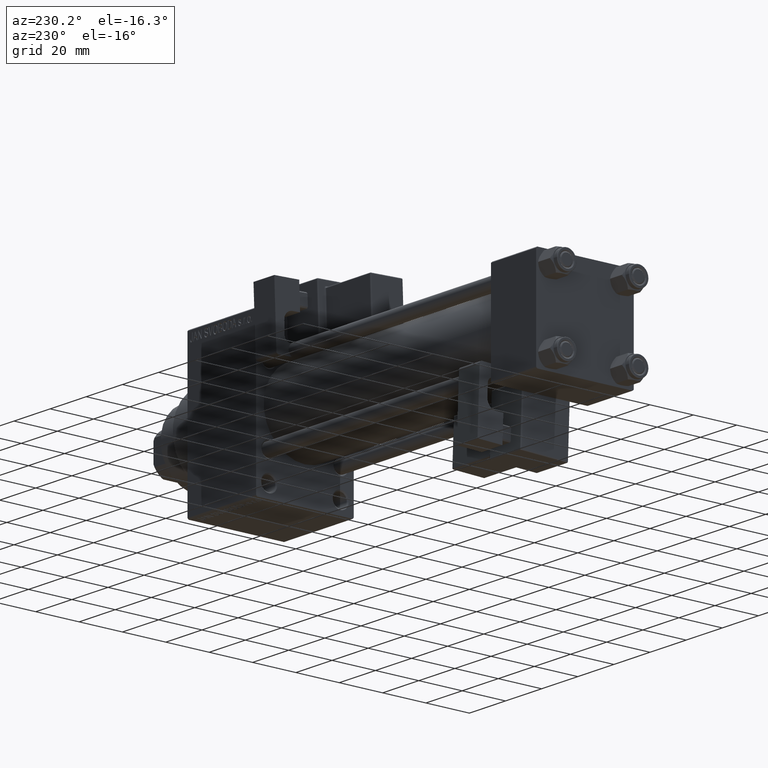
[diagram: clean part render]
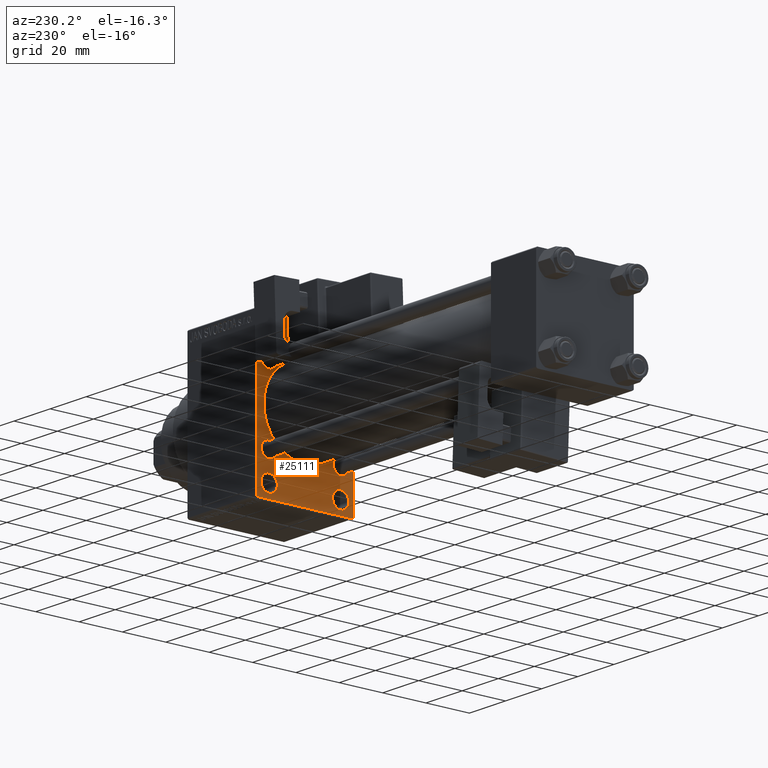
[diagram: same view with one face highlighted and labeled with its STEP entity id]
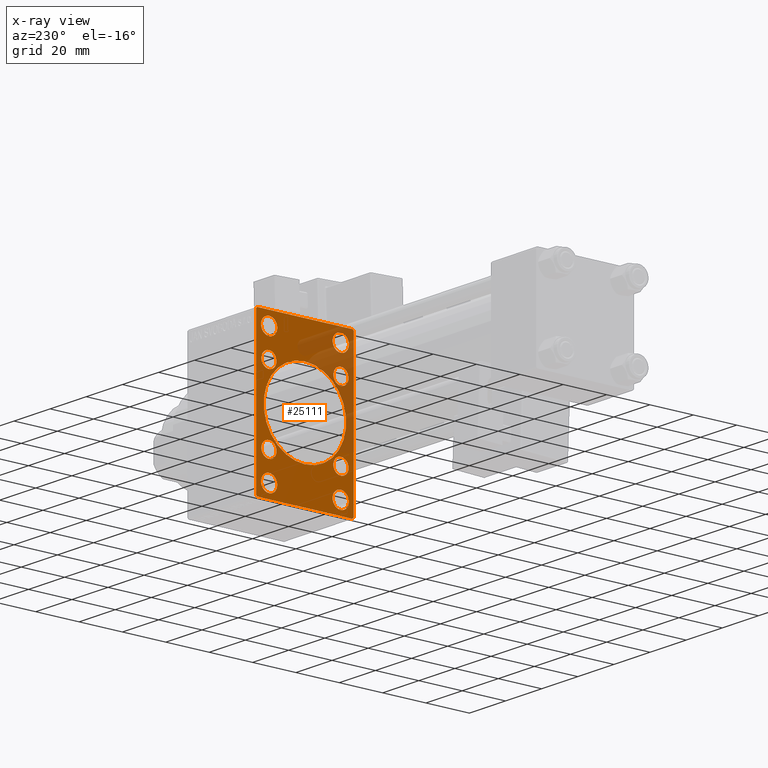
[diagram: x-ray of the same camera — body ghosted, the highlighted face saturated]
A machine part, auxiliary view. The second image highlights one B-rep face of the part: STEP entity #25111.
The next image is the same camera in x-ray: the body ghosted, the highlighted face saturated — about 25% of this face is hidden behind the body in this view.
In plain terms, the highlighted planar face has unit normal (-1, 0, 0).
Its self-contained STEP definition (entity closure, byte-faithful):
#445 = VECTOR ( 'NONE', #39798, 1000.000000000000114 ) ;
#548 = ORIENTED_EDGE ( 'NONE', *, *, #36403, .T. ) ;
#910 = AXIS2_PLACEMENT_3D ( 'NONE', #38873, #23373, #38625 ) ;
#1224 = VERTEX_POINT ( 'NONE', #12276 ) ;
#2043 = CARTESIAN_POINT ( 'NONE',  ( 155.0000000000000000, 22.49999999999999645, 35.00000000000000000 ) ) ;
#2148 = DIRECTION ( 'NONE',  ( 0.000000000000000000, 0.000000000000000000, 1.000000000000000000 ) ) ;
#2580 = CARTESIAN_POINT ( 'NONE',  ( 155.0000000000000000, 22.49999999999999645, -34.50000000000000000 ) ) ;
#2790 = ORIENTED_EDGE ( 'NONE', *, *, #21309, .T. ) ;
#2875 = CARTESIAN_POINT ( 'NONE',  ( 155.0000000000000000, 16.50000000000000000, 25.25000000000008882 ) ) ;
#3034 = EDGE_CURVE ( 'NONE', #27205, #37232, #13040, .T. ) ;
#3080 = DIRECTION ( 'NONE',  ( 0.000000000000000000, 0.000000000000000000, 1.000000000000000000 ) ) ;
#3675 = EDGE_CURVE ( 'NONE', #31376, #22239, #36260, .T. ) ;
#3680 = CARTESIAN_POINT ( 'NONE',  ( 155.0000000000000000, -16.50000000000000000, -25.25000000000007105 ) ) ;
#3716 = AXIS2_PLACEMENT_3D ( 'NONE', #48288, #45297, #30284 ) ;
#4088 = CIRCLE ( 'NONE', #43981, 19.00000000000000000 ) ;
#4448 = CARTESIAN_POINT ( 'NONE',  ( 155.0000000000000000, -16.50000000000000000, -32.74999999999991473 ) ) ;
#4477 = VECTOR ( 'NONE', #13500, 1000.000000000000114 ) ;
#4699 = ORIENTED_EDGE ( 'NONE', *, *, #33102, .T. ) ;
#5018 = CIRCLE ( 'NONE', #20162, 3.749999999999923617 ) ;
#5163 = FACE_BOUND ( 'NONE', #9074, .T. ) ;
#5191 = AXIS2_PLACEMENT_3D ( 'NONE', #39839, #25302, #9593 ) ;
#5259 = VECTOR ( 'NONE', #17628, 1000.000000000000000 ) ;
#5283 = ORIENTED_EDGE ( 'NONE', *, *, #47340, .T. ) ;
#5382 = CARTESIAN_POINT ( 'NONE',  ( 155.0000000000000000, -22.50000000000000355, 34.50000000000000000 ) ) ;
#5645 = FACE_OUTER_BOUND ( 'NONE', #34536, .T. ) ;
#6090 = DIRECTION ( 'NONE',  ( 0.000000000000000000, 0.000000000000000000, 1.000000000000000000 ) ) ;
#6370 = CIRCLE ( 'NONE', #32706, 3.749999999999920064 ) ;
#6580 = CIRCLE ( 'NONE', #36901, 3.500000000000006661 ) ;
#6592 = DIRECTION ( 'NONE',  ( 0.000000000000000000, 0.000000000000000000, 1.000000000000000000 ) ) ;
#6862 = AXIS2_PLACEMENT_3D ( 'NONE', #36382, #36140, #17150 ) ;
#7478 = VERTEX_POINT ( 'NONE', #5382 ) ;
#7543 = VERTEX_POINT ( 'NONE', #48578 ) ;
#7576 = CARTESIAN_POINT ( 'NONE',  ( 155.0000000000000000, 16.50000000000000000, 29.00000000000000355 ) ) ;
#8163 = CARTESIAN_POINT ( 'NONE',  ( 155.0000000000000000, -16.59999999999999076, 16.60000000000000853 ) ) ;
#8313 = ORIENTED_EDGE ( 'NONE', *, *, #19237, .T. ) ;
#8346 = DIRECTION ( 'NONE',  ( 1.000000000000000000, 0.000000000000000000, 0.000000000000000000 ) ) ;
#8737 = DIRECTION ( 'NONE',  ( 0.000000000000000000, 0.000000000000000000, 1.000000000000000000 ) ) ;
#8761 = CARTESIAN_POINT ( 'NONE',  ( 155.0000000000000000, -28.49999999999999645, 28.49999999999999645 ) ) ;
#8897 = CARTESIAN_POINT ( 'NONE',  ( 155.0000000000000000, -16.59999999999999076, -20.10000000000001208 ) ) ;
#9074 = EDGE_LOOP ( 'NONE', ( #8313, #29240 ) ) ;
#9284 = ORIENTED_EDGE ( 'NONE', *, *, #33986, .T. ) ;
#9407 = FACE_BOUND ( 'NONE', #16083, .T. ) ;
#9593 = DIRECTION ( 'NONE',  ( 0.000000000000000000, 0.000000000000000000, 1.000000000000000000 ) ) ;
#9595 = VERTEX_POINT ( 'NONE', #24849 ) ;
#9898 = LINE ( 'NONE', #37618, #5259 ) ;
#9971 = CIRCLE ( 'NONE', #5191, 3.500000000000006661 ) ;
#10119 = ORIENTED_EDGE ( 'NONE', *, *, #11229, .T. ) ;
#10125 = DIRECTION ( 'NONE',  ( 0.000000000000000000, -0.7071067811865474617, 0.7071067811865474617 ) ) ;
#10395 = CIRCLE ( 'NONE', #27948, 3.500000000000006661 ) ;
#10513 = DIRECTION ( 'NONE',  ( 1.000000000000000000, 0.000000000000000000, 0.000000000000000000 ) ) ;
#10995 = DIRECTION ( 'NONE',  ( 0.000000000000000000, 0.000000000000000000, 1.000000000000000000 ) ) ;
#11229 = EDGE_CURVE ( 'NONE', #7543, #28638, #47215, .T. ) ;
#11250 = AXIS2_PLACEMENT_3D ( 'NONE', #38732, #35224, #8737 ) ;
#11363 = DIRECTION ( 'NONE',  ( 0.000000000000000000, 0.000000000000000000, 1.000000000000000000 ) ) ;
#11394 = CARTESIAN_POINT ( 'NONE',  ( 155.0000000000000000, 16.59999999999999787, 20.10000000000001208 ) ) ;
#11403 = CIRCLE ( 'NONE', #40131, 3.500000000000006661 ) ;
#11796 = AXIS2_PLACEMENT_3D ( 'NONE', #25870, #48856, #2148 ) ;
#11815 = CARTESIAN_POINT ( 'NONE',  ( 155.0000000000000000, -16.50000000000000000, 25.25000000000009237 ) ) ;
#11839 = CARTESIAN_POINT ( 'NONE',  ( 155.0000000000000000, 16.59999999999999787, -13.09999999999999787 ) ) ;
#11917 = DIRECTION ( 'NONE',  ( 1.000000000000000000, 0.000000000000000000, 0.000000000000000000 ) ) ;
#11993 = ORIENTED_EDGE ( 'NONE', *, *, #35750, .T. ) ;
#12276 = CARTESIAN_POINT ( 'NONE',  ( 155.0000000000000000, 16.50000000000000000, 32.74999999999991473 ) ) ;
#12582 = ORIENTED_EDGE ( 'NONE', *, *, #14310, .T. ) ;
#13040 = CIRCLE ( 'NONE', #32194, 3.749999999999923617 ) ;
#13422 = VERTEX_POINT ( 'NONE', #44627 ) ;
#13500 = DIRECTION ( 'NONE',  ( -0.000000000000000000, 0.7071067811865474617, 0.7071067811865474617 ) ) ;
#13655 = CIRCLE ( 'NONE', #11250, 3.749999999999923617 ) ;
#13869 = ORIENTED_EDGE ( 'NONE', *, *, #3034, .T. ) ;
#14310 = EDGE_CURVE ( 'NONE', #43774, #47914, #5018, .T. ) ;
#14380 = DIRECTION ( 'NONE',  ( 0.000000000000000000, 0.000000000000000000, 1.000000000000000000 ) ) ;
#14515 = CARTESIAN_POINT ( 'NONE',  ( 155.0000000000000000, 16.50000000000000000, -28.99999999999999289 ) ) ;
#14637 = CARTESIAN_POINT ( 'NONE',  ( 155.0000000000000000, -2.602085213965210642E-15, 0.000000000000000000 ) ) ;
#14667 = EDGE_CURVE ( 'NONE', #21251, #40844, #11403, .T. ) ;
#14902 = VERTEX_POINT ( 'NONE', #31551 ) ;
#15145 = AXIS2_PLACEMENT_3D ( 'NONE', #23335, #8346, #46579 ) ;
#16083 = EDGE_LOOP ( 'NONE', ( #12582, #25282 ) ) ;
#16125 = CARTESIAN_POINT ( 'NONE',  ( 155.0000000000000000, 22.49999999999999645, 35.00000000000000000 ) ) ;
#16679 = VERTEX_POINT ( 'NONE', #26884 ) ;
#16869 = EDGE_LOOP ( 'NONE', ( #43017, #548 ) ) ;
#16997 = VERTEX_POINT ( 'NONE', #11839 ) ;
#17028 = ORIENTED_EDGE ( 'NONE', *, *, #14667, .T. ) ;
#17150 = DIRECTION ( 'NONE',  ( -0.000000000000000000, 0.000000000000000000, 1.000000000000000000 ) ) ;
#17402 = CIRCLE ( 'NONE', #11796, 3.749999999999923617 ) ;
#17628 = DIRECTION ( 'NONE',  ( 0.000000000000000000, -1.000000000000000000, 0.000000000000000000 ) ) ;
#17681 = CARTESIAN_POINT ( 'NONE',  ( 155.0000000000000000, 16.50000000000000000, -32.74999999999991473 ) ) ;
#18064 = EDGE_CURVE ( 'NONE', #7478, #13422, #22164, .T. ) ;
#18289 = ORIENTED_EDGE ( 'NONE', *, *, #18064, .F. ) ;
#19237 = EDGE_CURVE ( 'NONE', #19721, #39919, #42732, .T. ) ;
#19242 = CARTESIAN_POINT ( 'NONE',  ( 155.0000000000000000, -21.99999999999998934, -35.00000000000000000 ) ) ;
#19547 = EDGE_CURVE ( 'NONE', #16997, #16679, #9971, .T. ) ;
#19721 = VERTEX_POINT ( 'NONE', #31213 ) ;
#20162 = AXIS2_PLACEMENT_3D ( 'NONE', #14515, #10513, #45261 ) ;
#20888 = PLANE ( 'NONE',  #6862 ) ;
#20900 = CARTESIAN_POINT ( 'NONE',  ( 155.0000000000000000, -16.50000000000000000, 29.00000000000000711 ) ) ;
#21134 = FACE_BOUND ( 'NONE', #23643, .T. ) ;
#21150 = DIRECTION ( 'NONE',  ( 0.000000000000000000, 0.000000000000000000, 1.000000000000000000 ) ) ;
#21251 = VERTEX_POINT ( 'NONE', #35542 ) ;
#21278 = DIRECTION ( 'NONE',  ( 0.000000000000000000, -1.000000000000000000, 0.000000000000000000 ) ) ;
#21309 = EDGE_CURVE ( 'NONE', #9595, #37935, #24043, .T. ) ;
#22146 = AXIS2_PLACEMENT_3D ( 'NONE', #25494, #37499, #10995 ) ;
#22164 = LINE ( 'NONE', #34153, #22674 ) ;
#22239 = VERTEX_POINT ( 'NONE', #41090 ) ;
#22312 = DIRECTION ( 'NONE',  ( 1.000000000000000000, 0.000000000000000000, 0.000000000000000000 ) ) ;
#22674 = VECTOR ( 'NONE', #33414, 1000.000000000000000 ) ;
#23086 = CIRCLE ( 'NONE', #42248, 3.500000000000006661 ) ;
#23335 = CARTESIAN_POINT ( 'NONE',  ( 155.0000000000000000, 16.50000000000000000, 29.00000000000000355 ) ) ;
#23373 = DIRECTION ( 'NONE',  ( 1.000000000000000000, 0.000000000000000000, 0.000000000000000000 ) ) ;
#23643 = EDGE_LOOP ( 'NONE', ( #45954, #4699 ) ) ;
#23797 = CARTESIAN_POINT ( 'NONE',  ( 155.0000000000000000, 28.49999999999999645, 28.49999999999999645 ) ) ;
#24043 = LINE ( 'NONE', #23797, #445 ) ;
#24365 = VERTEX_POINT ( 'NONE', #2875 ) ;
#24414 = CARTESIAN_POINT ( 'NONE',  ( 155.0000000000000000, -16.59999999999999076, -16.60000000000000853 ) ) ;
#24635 = FACE_BOUND ( 'NONE', #40760, .T. ) ;
#24849 = CARTESIAN_POINT ( 'NONE',  ( 155.0000000000000000, 21.99999999999999645, 35.00000000000000000 ) ) ;
#24877 = FACE_BOUND ( 'NONE', #40563, .T. ) ;
#24904 = DIRECTION ( 'NONE',  ( 1.000000000000000000, 0.000000000000000000, 0.000000000000000000 ) ) ;
#24982 = VERTEX_POINT ( 'NONE', #42663 ) ;
#25111 = ADVANCED_FACE ( 'NONE', ( #28388, #24877, #9407, #24635, #5163, #39898, #42911, #21134, #31646, #5645 ), #20888, .T. ) ;
#25156 = AXIS2_PLACEMENT_3D ( 'NONE', #8163, #38904, #35147 ) ;
#25247 = EDGE_CURVE ( 'NONE', #22239, #32565, #9898, .T. ) ;
#25282 = ORIENTED_EDGE ( 'NONE', *, *, #45976, .T. ) ;
#25302 = DIRECTION ( 'NONE',  ( 1.000000000000000000, 0.000000000000000000, 0.000000000000000000 ) ) ;
#25455 = EDGE_CURVE ( 'NONE', #7478, #14902, #43257, .T. ) ;
#25494 = CARTESIAN_POINT ( 'NONE',  ( 155.0000000000000000, 16.59999999999999787, -16.60000000000000497 ) ) ;
#25851 = CARTESIAN_POINT ( 'NONE',  ( 155.0000000000000000, -28.49999999999999645, -28.49999999999999645 ) ) ;
#25870 = CARTESIAN_POINT ( 'NONE',  ( 155.0000000000000000, -16.50000000000000000, -28.99999999999999289 ) ) ;
#26305 = DIRECTION ( 'NONE',  ( 1.000000000000000000, 0.000000000000000000, 0.000000000000000000 ) ) ;
#26435 = VECTOR ( 'NONE', #10125, 1000.000000000000114 ) ;
#26518 = VERTEX_POINT ( 'NONE', #8897 ) ;
#26862 = CARTESIAN_POINT ( 'NONE',  ( 155.0000000000000000, -16.59999999999999076, 13.10000000000000142 ) ) ;
#26884 = CARTESIAN_POINT ( 'NONE',  ( 155.0000000000000000, 16.59999999999999787, -20.10000000000000853 ) ) ;
#26886 = EDGE_CURVE ( 'NONE', #24982, #37780, #33248, .T. ) ;
#27086 = CARTESIAN_POINT ( 'NONE',  ( 155.0000000000000000, 16.59999999999999787, 16.60000000000000497 ) ) ;
#27205 = VERTEX_POINT ( 'NONE', #3680 ) ;
#27224 = EDGE_CURVE ( 'NONE', #39919, #19721, #30071, .T. ) ;
#27655 = AXIS2_PLACEMENT_3D ( 'NONE', #34904, #11917, #42162 ) ;
#27742 = CIRCLE ( 'NONE', #22146, 3.500000000000006661 ) ;
#27948 = AXIS2_PLACEMENT_3D ( 'NONE', #27086, #45602, #11363 ) ;
#28388 = FACE_BOUND ( 'NONE', #16869, .T. ) ;
#28528 = CARTESIAN_POINT ( 'NONE',  ( 155.0000000000000000, 22.49999999999999645, 34.50000000000000000 ) ) ;
#28638 = VERTEX_POINT ( 'NONE', #34428 ) ;
#28875 = CARTESIAN_POINT ( 'NONE',  ( 155.0000000000000000, -16.50000000000000000, -28.99999999999999289 ) ) ;
#29029 = EDGE_CURVE ( 'NONE', #37935, #31376, #43616, .T. ) ;
#29240 = ORIENTED_EDGE ( 'NONE', *, *, #27224, .T. ) ;
#29610 = DIRECTION ( 'NONE',  ( 1.000000000000000000, 0.000000000000000000, 0.000000000000000000 ) ) ;
#30071 = CIRCLE ( 'NONE', #27655, 3.500000000000003109 ) ;
#30284 = DIRECTION ( 'NONE',  ( 0.000000000000000000, 0.000000000000000000, 1.000000000000000000 ) ) ;
#30807 = ORIENTED_EDGE ( 'NONE', *, *, #3675, .T. ) ;
#31213 = CARTESIAN_POINT ( 'NONE',  ( 155.0000000000000000, -16.59999999999999076, 20.10000000000001208 ) ) ;
#31376 = VERTEX_POINT ( 'NONE', #2580 ) ;
#31551 = CARTESIAN_POINT ( 'NONE',  ( 155.0000000000000000, -21.99999999999998934, 35.00000000000000000 ) ) ;
#31646 = FACE_BOUND ( 'NONE', #45821, .T. ) ;
#31921 = DIRECTION ( 'NONE',  ( 0.000000000000000000, 0.000000000000000000, 1.000000000000000000 ) ) ;
#32194 = AXIS2_PLACEMENT_3D ( 'NONE', #28875, #29610, #14380 ) ;
#32266 = DIRECTION ( 'NONE',  ( -0.000000000000000000, -0.7071067811865474617, -0.7071067811865474617 ) ) ;
#32353 = DIRECTION ( 'NONE',  ( 0.000000000000000000, 0.000000000000000000, -1.000000000000000000 ) ) ;
#32565 = VERTEX_POINT ( 'NONE', #19242 ) ;
#32706 = AXIS2_PLACEMENT_3D ( 'NONE', #7576, #26305, #3080 ) ;
#33102 = EDGE_CURVE ( 'NONE', #26518, #40154, #23086, .T. ) ;
#33243 = ORIENTED_EDGE ( 'NONE', *, *, #29029, .T. ) ;
#33248 = CIRCLE ( 'NONE', #3716, 3.749999999999916511 ) ;
#33250 = ORIENTED_EDGE ( 'NONE', *, *, #43265, .T. ) ;
#33414 = DIRECTION ( 'NONE',  ( 0.000000000000000000, 0.000000000000000000, -1.000000000000000000 ) ) ;
#33521 = ORIENTED_EDGE ( 'NONE', *, *, #38997, .T. ) ;
#33986 = EDGE_CURVE ( 'NONE', #24365, #1224, #34290, .T. ) ;
#34153 = CARTESIAN_POINT ( 'NONE',  ( 155.0000000000000000, -22.50000000000000355, 35.00000000000000000 ) ) ;
#34290 = CIRCLE ( 'NONE', #15145, 3.749999999999920064 ) ;
#34428 = CARTESIAN_POINT ( 'NONE',  ( 155.0000000000000000, -2.752562955852396712E-16, -19.00000000000000000 ) ) ;
#34536 = EDGE_LOOP ( 'NONE', ( #48591, #5283, #18289, #49046, #42017, #2790, #33243, #30807 ) ) ;
#34904 = CARTESIAN_POINT ( 'NONE',  ( 155.0000000000000000, -16.59999999999999076, 16.60000000000000853 ) ) ;
#35147 = DIRECTION ( 'NONE',  ( 0.000000000000000000, 0.000000000000000000, 1.000000000000000000 ) ) ;
#35224 = DIRECTION ( 'NONE',  ( 1.000000000000000000, 0.000000000000000000, 0.000000000000000000 ) ) ;
#35542 = CARTESIAN_POINT ( 'NONE',  ( 155.0000000000000000, 16.59999999999999787, 13.09999999999999609 ) ) ;
#35750 = EDGE_CURVE ( 'NONE', #16679, #16997, #27742, .T. ) ;
#35968 = CARTESIAN_POINT ( 'NONE',  ( 155.0000000000000000, 16.50000000000000000, -25.25000000000007105 ) ) ;
#36140 = DIRECTION ( 'NONE',  ( -1.000000000000000000, 0.000000000000000000, -0.000000000000000000 ) ) ;
#36260 = LINE ( 'NONE', #40504, #42622 ) ;
#36382 = CARTESIAN_POINT ( 'NONE',  ( 155.0000000000000000, 0.000000000000000000, 0.000000000000000000 ) ) ;
#36403 = EDGE_CURVE ( 'NONE', #37780, #24982, #41346, .T. ) ;
#36523 = LINE ( 'NONE', #2043, #44626 ) ;
#36901 = AXIS2_PLACEMENT_3D ( 'NONE', #48551, #22312, #6090 ) ;
#37232 = VERTEX_POINT ( 'NONE', #4448 ) ;
#37384 = DIRECTION ( 'NONE',  ( 1.000000000000000000, 0.000000000000000000, 0.000000000000000000 ) ) ;
#37499 = DIRECTION ( 'NONE',  ( 1.000000000000000000, 0.000000000000000000, 0.000000000000000000 ) ) ;
#37618 = CARTESIAN_POINT ( 'NONE',  ( 155.0000000000000000, 22.49999999999999645, -35.00000000000000000 ) ) ;
#37780 = VERTEX_POINT ( 'NONE', #11815 ) ;
#37935 = VERTEX_POINT ( 'NONE', #28528 ) ;
#37995 = EDGE_CURVE ( 'NONE', #9595, #14902, #36523, .T. ) ;
#38625 = DIRECTION ( 'NONE',  ( 0.000000000000000000, 0.000000000000000000, -1.000000000000000000 ) ) ;
#38732 = CARTESIAN_POINT ( 'NONE',  ( 155.0000000000000000, 16.50000000000000000, -28.99999999999999289 ) ) ;
#38873 = CARTESIAN_POINT ( 'NONE',  ( 155.0000000000000000, -2.602085213965210642E-15, 0.000000000000000000 ) ) ;
#38904 = DIRECTION ( 'NONE',  ( 1.000000000000000000, 0.000000000000000000, 0.000000000000000000 ) ) ;
#38997 = EDGE_CURVE ( 'NONE', #37232, #27205, #17402, .T. ) ;
#39569 = ORIENTED_EDGE ( 'NONE', *, *, #19547, .T. ) ;
#39679 = DIRECTION ( 'NONE',  ( 1.000000000000000000, 0.000000000000000000, 0.000000000000000000 ) ) ;
#39798 = DIRECTION ( 'NONE',  ( 0.000000000000000000, 0.7071067811865474617, -0.7071067811865474617 ) ) ;
#39839 = CARTESIAN_POINT ( 'NONE',  ( 155.0000000000000000, 16.59999999999999787, -16.60000000000000497 ) ) ;
#39898 = FACE_BOUND ( 'NONE', #42281, .T. ) ;
#39919 = VERTEX_POINT ( 'NONE', #26862 ) ;
#40131 = AXIS2_PLACEMENT_3D ( 'NONE', #40172, #24904, #31921 ) ;
#40154 = VERTEX_POINT ( 'NONE', #47591 ) ;
#40172 = CARTESIAN_POINT ( 'NONE',  ( 155.0000000000000000, 16.59999999999999787, 16.60000000000000497 ) ) ;
#40504 = CARTESIAN_POINT ( 'NONE',  ( 155.0000000000000000, 28.49999999999999645, -28.49999999999999645 ) ) ;
#40556 = AXIS2_PLACEMENT_3D ( 'NONE', #20900, #40644, #21150 ) ;
#40563 = EDGE_LOOP ( 'NONE', ( #13869, #33521 ) ) ;
#40644 = DIRECTION ( 'NONE',  ( 1.000000000000000000, 0.000000000000000000, 0.000000000000000000 ) ) ;
#40760 = EDGE_LOOP ( 'NONE', ( #33250, #9284 ) ) ;
#40844 = VERTEX_POINT ( 'NONE', #11394 ) ;
#41090 = CARTESIAN_POINT ( 'NONE',  ( 155.0000000000000000, 21.99999999999999645, -35.00000000000000000 ) ) ;
#41140 = DIRECTION ( 'NONE',  ( 0.000000000000000000, 0.000000000000000000, -1.000000000000000000 ) ) ;
#41346 = CIRCLE ( 'NONE', #40556, 3.749999999999916511 ) ;
#42017 = ORIENTED_EDGE ( 'NONE', *, *, #37995, .F. ) ;
#42162 = DIRECTION ( 'NONE',  ( 0.000000000000000000, 0.000000000000000000, 1.000000000000000000 ) ) ;
#42248 = AXIS2_PLACEMENT_3D ( 'NONE', #24414, #39679, #6592 ) ;
#42281 = EDGE_LOOP ( 'NONE', ( #44281, #17028 ) ) ;
#42622 = VECTOR ( 'NONE', #32266, 1000.000000000000114 ) ;
#42663 = CARTESIAN_POINT ( 'NONE',  ( 155.0000000000000000, -16.50000000000000000, 32.74999999999992184 ) ) ;
#42732 = CIRCLE ( 'NONE', #25156, 3.500000000000003109 ) ;
#42911 = FACE_BOUND ( 'NONE', #44196, .T. ) ;
#43017 = ORIENTED_EDGE ( 'NONE', *, *, #26886, .T. ) ;
#43257 = LINE ( 'NONE', #8761, #4477 ) ;
#43265 = EDGE_CURVE ( 'NONE', #1224, #24365, #6370, .T. ) ;
#43616 = LINE ( 'NONE', #16125, #44498 ) ;
#43774 = VERTEX_POINT ( 'NONE', #35968 ) ;
#43981 = AXIS2_PLACEMENT_3D ( 'NONE', #14637, #37384, #41140 ) ;
#44196 = EDGE_LOOP ( 'NONE', ( #39569, #11993 ) ) ;
#44281 = ORIENTED_EDGE ( 'NONE', *, *, #44444, .T. ) ;
#44444 = EDGE_CURVE ( 'NONE', #40844, #21251, #10395, .T. ) ;
#44498 = VECTOR ( 'NONE', #32353, 1000.000000000000000 ) ;
#44626 = VECTOR ( 'NONE', #21278, 1000.000000000000000 ) ;
#44627 = CARTESIAN_POINT ( 'NONE',  ( 155.0000000000000000, -22.50000000000000355, -34.50000000000000000 ) ) ;
#45108 = LINE ( 'NONE', #25851, #26435 ) ;
#45261 = DIRECTION ( 'NONE',  ( 0.000000000000000000, 0.000000000000000000, 1.000000000000000000 ) ) ;
#45297 = DIRECTION ( 'NONE',  ( 1.000000000000000000, 0.000000000000000000, 0.000000000000000000 ) ) ;
#45602 = DIRECTION ( 'NONE',  ( 1.000000000000000000, 0.000000000000000000, 0.000000000000000000 ) ) ;
#45821 = EDGE_LOOP ( 'NONE', ( #10119, #49222 ) ) ;
#45954 = ORIENTED_EDGE ( 'NONE', *, *, #49273, .T. ) ;
#45976 = EDGE_CURVE ( 'NONE', #47914, #43774, #13655, .T. ) ;
#46095 = EDGE_CURVE ( 'NONE', #28638, #7543, #4088, .T. ) ;
#46579 = DIRECTION ( 'NONE',  ( 0.000000000000000000, 0.000000000000000000, 1.000000000000000000 ) ) ;
#47215 = CIRCLE ( 'NONE', #910, 19.00000000000000000 ) ;
#47340 = EDGE_CURVE ( 'NONE', #32565, #13422, #45108, .T. ) ;
#47591 = CARTESIAN_POINT ( 'NONE',  ( 155.0000000000000000, -16.59999999999999076, -13.10000000000000142 ) ) ;
#47914 = VERTEX_POINT ( 'NONE', #17681 ) ;
#48288 = CARTESIAN_POINT ( 'NONE',  ( 155.0000000000000000, -16.50000000000000000, 29.00000000000000711 ) ) ;
#48551 = CARTESIAN_POINT ( 'NONE',  ( 155.0000000000000000, -16.59999999999999076, -16.60000000000000853 ) ) ;
#48578 = CARTESIAN_POINT ( 'NONE',  ( 155.0000000000000000, -2.602085213965210642E-15, 19.00000000000000000 ) ) ;
#48591 = ORIENTED_EDGE ( 'NONE', *, *, #25247, .T. ) ;
#48856 = DIRECTION ( 'NONE',  ( 1.000000000000000000, 0.000000000000000000, 0.000000000000000000 ) ) ;
#49046 = ORIENTED_EDGE ( 'NONE', *, *, #25455, .T. ) ;
#49222 = ORIENTED_EDGE ( 'NONE', *, *, #46095, .T. ) ;
#49273 = EDGE_CURVE ( 'NONE', #40154, #26518, #6580, .T. ) ;